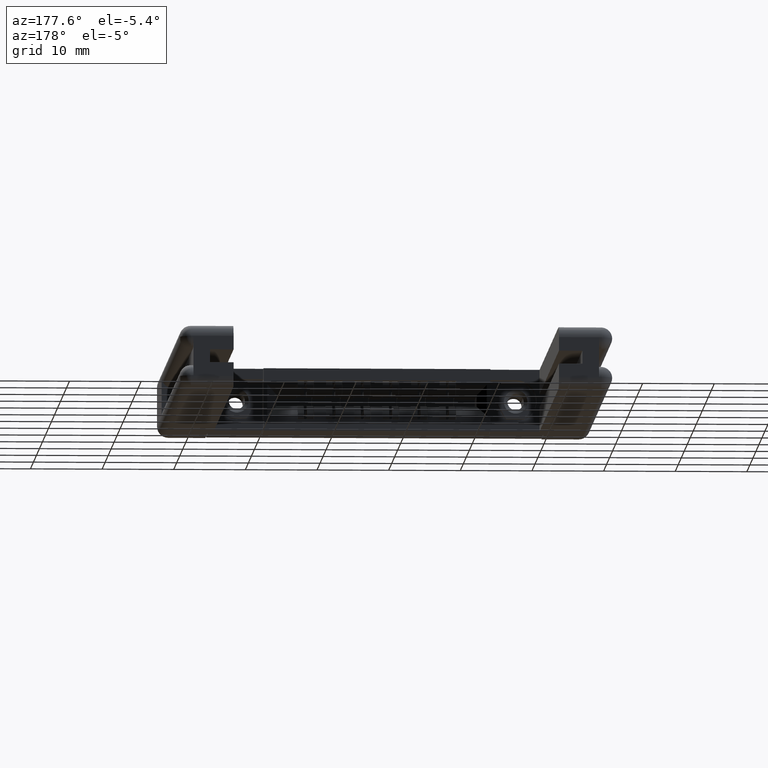
[diagram: clean part render]
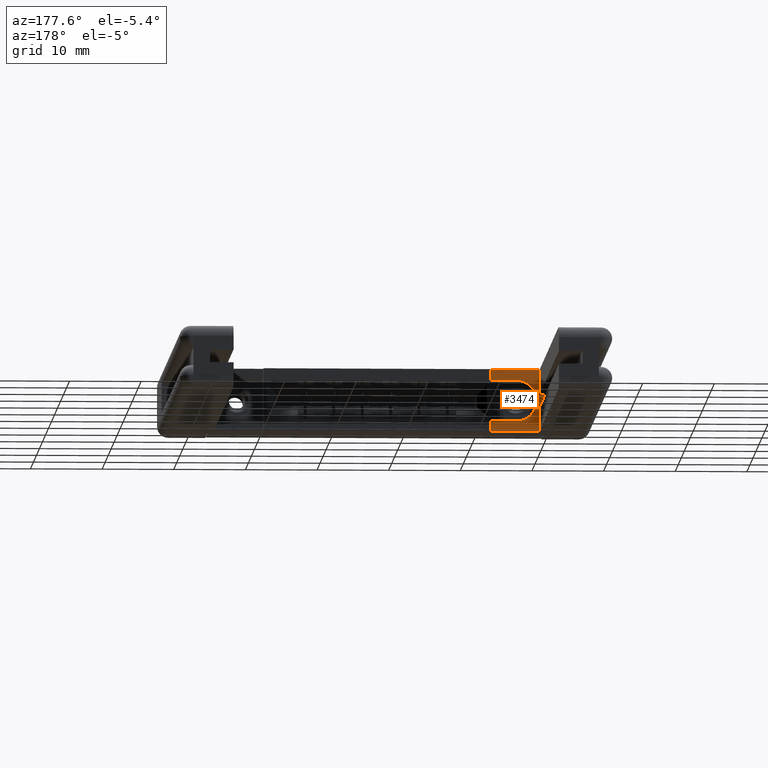
[diagram: same view with one face highlighted and labeled with its STEP entity id]
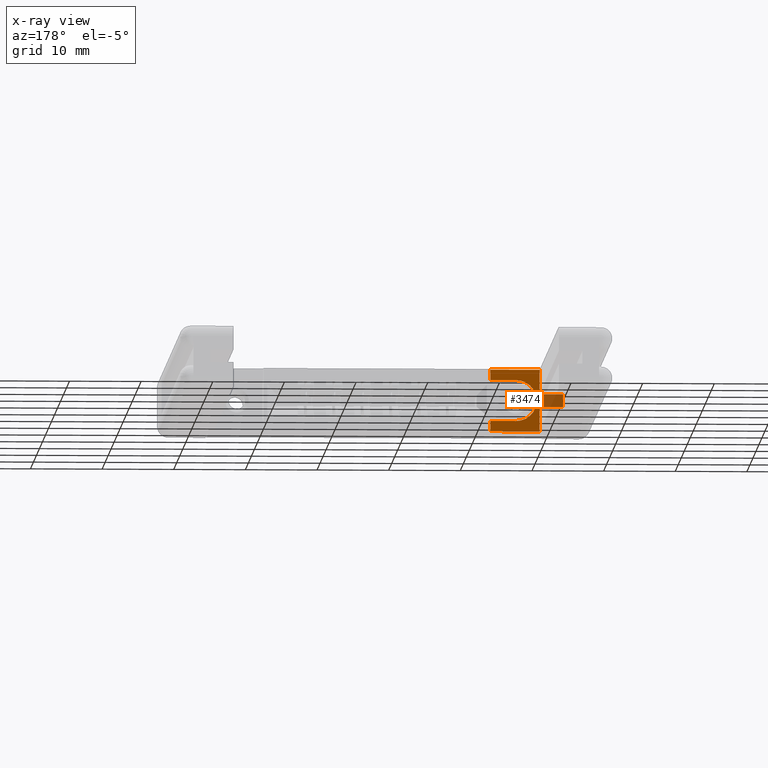
[diagram: x-ray of the same camera — body ghosted, the highlighted face saturated]
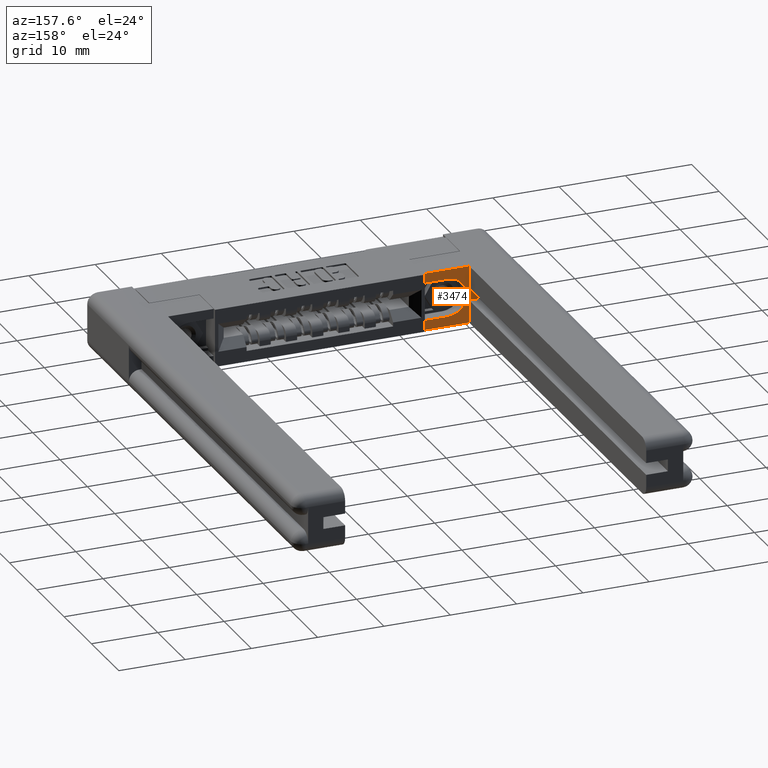
[diagram: same view with one face highlighted and labeled with its STEP entity id]
A machine part, auxiliary view. The second image highlights one B-rep face of the part: STEP entity #3474.
The next image is the same camera in x-ray: the body ghosted, the highlighted face saturated — about 16% of this face is hidden behind the body in this view.
A second angle (auxiliary view) of the same face is appended — the face is thin or edge-on in the first view.
In plain terms, the highlighted planar face has unit normal (0, 1, 0).
Its self-contained STEP definition (entity closure, byte-faithful):
#75 = CARTESIAN_POINT ( 'NONE',  ( 0.2950000000000032600, 0.4500000000000002300, -8.878505979408856000E-016 ) ) ;
#271 = EDGE_CURVE ( 'NONE', #777, #1813, #11849, .T. ) ;
#399 = DIRECTION ( 'NONE',  ( -1.000000000000000000, -7.120336040201832800E-016, -4.510281037539672600E-017 ) ) ;
#585 = CARTESIAN_POINT ( 'NONE',  ( 0.1660000000000000900, 0.4500000000000001200, -0.2055000000000013200 ) ) ;
#777 = VERTEX_POINT ( 'NONE', #4367 ) ;
#864 = LINE ( 'NONE', #10777, #11649 ) ;
#921 = DIRECTION ( 'NONE',  ( 4.510281037539688000E-017, -2.334284690065025200E-016, 1.000000000000000000 ) ) ;
#962 = CARTESIAN_POINT ( 'NONE',  ( 0.5650000000000069400, 0.4500000000000004000, -0.3400000000000018600 ) ) ;
#1063 = ORIENTED_EDGE ( 'NONE', *, *, #7415, .F. ) ;
#1114 = EDGE_CURVE ( 'NONE', #5631, #11055, #3360, .T. ) ;
#1247 = DIRECTION ( 'NONE',  ( 4.510281037539688600E-017, -2.334284690065025700E-016, 1.000000000000000000 ) ) ;
#1306 = EDGE_CURVE ( 'NONE', #777, #6497, #9309, .T. ) ;
#1471 = ORIENTED_EDGE ( 'NONE', *, *, #4206, .T. ) ;
#1509 = CARTESIAN_POINT ( 'NONE',  ( 0.2950000000000062600, 0.4500000000000002300, -0.3400000000000031900 ) ) ;
#1674 = EDGE_CURVE ( 'NONE', #11055, #11959, #864, .T. ) ;
#1744 = DIRECTION ( 'NONE',  ( 1.000000000000000000, 8.325563096230175100E-016, 4.510281037539665800E-017 ) ) ;
#1762 = EDGE_CURVE ( 'NONE', #6497, #12619, #10073, .T. ) ;
#1786 = ORIENTED_EDGE ( 'NONE', *, *, #271, .T. ) ;
#1813 = VERTEX_POINT ( 'NONE', #2915 ) ;
#2057 = VECTOR ( 'NONE', #10133, 39.37007874015748100 ) ;
#2249 = CARTESIAN_POINT ( 'NONE',  ( 0.2950000000000062600, 0.4500000000000002300, -0.3400000000000031900 ) ) ;
#2369 = EDGE_LOOP ( 'NONE', ( #6651, #5491, #1063, #12644, #4499, #12525, #6789, #1786, #1471, #3283, #12337, #7444 ) ) ;
#2495 = CARTESIAN_POINT ( 'NONE',  ( 0.2950000000000062600, 0.4500000000000002300, -0.3400000000000031900 ) ) ;
#2890 = DIRECTION ( 'NONE',  ( 0.0000000000000000000, 0.0000000000000000000, 1.000000000000000000 ) ) ;
#2915 = CARTESIAN_POINT ( 'NONE',  ( 0.2950000000000032600, 0.4500000000000002300, -0.1345000000000017000 ) ) ;
#2924 = DIRECTION ( 'NONE',  ( 7.120336040201873200E-016, 1.000000000000000000, 2.334284690065024700E-016 ) ) ;
#2959 = LINE ( 'NONE', #962, #7490 ) ;
#2963 = DIRECTION ( 'NONE',  ( 4.510281037539688600E-017, -2.334284690065025700E-016, 1.000000000000000000 ) ) ;
#3082 = VECTOR ( 'NONE', #1744, 39.37007874015748100 ) ;
#3095 = EDGE_CURVE ( 'NONE', #9585, #12619, #8087, .T. ) ;
#3157 = CARTESIAN_POINT ( 'NONE',  ( 0.5650000000000069400, 0.4500000000000004000, -0.3400000000000018600 ) ) ;
#3226 = DIRECTION ( 'NONE',  ( -4.510281037539688600E-017, 2.334284690065025700E-016, -1.000000000000000000 ) ) ;
#3241 = DIRECTION ( 'NONE',  ( 4.510281037539688600E-017, -2.334284690065025700E-016, 1.000000000000000000 ) ) ;
#3283 = ORIENTED_EDGE ( 'NONE', *, *, #1674, .F. ) ;
#3360 = LINE ( 'NONE', #9869, #12896 ) ;
#3474 = ADVANCED_FACE ( 'NONE', ( #6342 ), #5759, .T. ) ;
#4206 = EDGE_CURVE ( 'NONE', #1813, #11959, #11165, .T. ) ;
#4367 = CARTESIAN_POINT ( 'NONE',  ( 0.1659999999999998100, 0.4500000000000001200, -0.1345000000000013700 ) ) ;
#4413 = CARTESIAN_POINT ( 'NONE',  ( 0.4230000000000066500, 0.4500000000000004000, -0.2825000000000016900 ) ) ;
#4495 = DIRECTION ( 'NONE',  ( -1.000000000000000000, -7.120336040201832800E-016, -4.510281037539672600E-017 ) ) ;
#4499 = ORIENTED_EDGE ( 'NONE', *, *, #3095, .T. ) ;
#4922 = EDGE_CURVE ( 'NONE', #5631, #8978, #7055, .T. ) ;
#5011 = VERTEX_POINT ( 'NONE', #4413 ) ;
#5467 = CARTESIAN_POINT ( 'NONE',  ( -0.04781107766231787500, 0.4499999999999999600, -0.05750000000000048100 ) ) ;
#5491 = ORIENTED_EDGE ( 'NONE', *, *, #10020, .T. ) ;
#5631 = VERTEX_POINT ( 'NONE', #6421 ) ;
#5661 = CARTESIAN_POINT ( 'NONE',  ( 0.1659999999999998100, 0.4500000000000001200, -0.1345000000000013700 ) ) ;
#5759 = PLANE ( 'NONE',  #7215 ) ;
#5845 = VECTOR ( 'NONE', #1247, 39.37007874015748100 ) ;
#6159 = CARTESIAN_POINT ( 'NONE',  ( -0.04781107766231787500, 0.4499999999999999600, -0.2825000000000020800 ) ) ;
#6342 = FACE_OUTER_BOUND ( 'NONE', #2369, .T. ) ;
#6421 = CARTESIAN_POINT ( 'NONE',  ( 0.5650000000000067200, 0.4500000000000004000, -0.05750000000000048100 ) ) ;
#6497 = VERTEX_POINT ( 'NONE', #585 ) ;
#6520 = VECTOR ( 'NONE', #3241, 39.37007874015748100 ) ;
#6651 = ORIENTED_EDGE ( 'NONE', *, *, #6740, .F. ) ;
#6740 = EDGE_CURVE ( 'NONE', #5011, #8978, #8752, .T. ) ;
#6789 = ORIENTED_EDGE ( 'NONE', *, *, #1306, .F. ) ;
#6915 = VECTOR ( 'NONE', #399, 39.37007874015748100 ) ;
#7055 = LINE ( 'NONE', #5467, #6915 ) ;
#7178 = EDGE_CURVE ( 'NONE', #11220, #9585, #7777, .T. ) ;
#7215 = AXIS2_PLACEMENT_3D ( 'NONE', #11803, #2924, #921 ) ;
#7221 = CARTESIAN_POINT ( 'NONE',  ( 0.5650000000000067200, 0.4500000000000004000, -0.2825000000000016400 ) ) ;
#7415 = EDGE_CURVE ( 'NONE', #11220, #7595, #2959, .T. ) ;
#7444 = ORIENTED_EDGE ( 'NONE', *, *, #4922, .T. ) ;
#7473 = VECTOR ( 'NONE', #4495, 39.37007874015748100 ) ;
#7490 = VECTOR ( 'NONE', #2963, 39.37007874015748100 ) ;
#7494 = CARTESIAN_POINT ( 'NONE',  ( 0.4230000000000066500, 0.4500000000000004000, -0.05750000000000048100 ) ) ;
#7595 = VERTEX_POINT ( 'NONE', #7221 ) ;
#7777 = LINE ( 'NONE', #1509, #7473 ) ;
#8087 = LINE ( 'NONE', #9140, #6520 ) ;
#8727 = DIRECTION ( 'NONE',  ( -1.000000000000000000, -7.120336040201832800E-016, -4.510281037539672600E-017 ) ) ;
#8752 = CIRCLE ( 'NONE', #8867, 0.1125000000000005700 ) ;
#8867 = AXIS2_PLACEMENT_3D ( 'NONE', #8972, #9008, #2890 ) ;
#8972 = CARTESIAN_POINT ( 'NONE',  ( 0.4230000000000066500, 0.4500000000000004000, -0.1700000000000012900 ) ) ;
#8978 = VERTEX_POINT ( 'NONE', #7494 ) ;
#8988 = VECTOR ( 'NONE', #11876, 39.37007874015748100 ) ;
#9008 = DIRECTION ( 'NONE',  ( 7.120336040201873200E-016, 1.000000000000000000, -2.334284690065040000E-016 ) ) ;
#9140 = CARTESIAN_POINT ( 'NONE',  ( 0.2950000000000062600, 0.4500000000000002300, -0.3400000000000031900 ) ) ;
#9211 = CARTESIAN_POINT ( 'NONE',  ( 0.1659999999999998100, 0.4500000000000001200, -0.1345000000000013700 ) ) ;
#9309 = LINE ( 'NONE', #9211, #11662 ) ;
#9585 = VERTEX_POINT ( 'NONE', #2495 ) ;
#9869 = CARTESIAN_POINT ( 'NONE',  ( 0.5650000000000069400, 0.4500000000000004000, -0.3400000000000018600 ) ) ;
#9946 = CARTESIAN_POINT ( 'NONE',  ( 0.1660000000000000900, 0.4500000000000001200, -0.2055000000000013200 ) ) ;
#10006 = DIRECTION ( 'NONE',  ( 4.510281037539688600E-017, -2.334284690065025700E-016, 1.000000000000000000 ) ) ;
#10020 = EDGE_CURVE ( 'NONE', #5011, #7595, #11300, .T. ) ;
#10073 = LINE ( 'NONE', #9946, #8988 ) ;
#10133 = DIRECTION ( 'NONE',  ( 1.000000000000000000, 7.120336040201832800E-016, 4.510281037539672600E-017 ) ) ;
#10777 = CARTESIAN_POINT ( 'NONE',  ( 0.2950000000000032600, 0.4500000000000002300, -8.878505979408856000E-016 ) ) ;
#11055 = VERTEX_POINT ( 'NONE', #12689 ) ;
#11165 = LINE ( 'NONE', #2249, #5845 ) ;
#11203 = CARTESIAN_POINT ( 'NONE',  ( 0.2950000000000062600, 0.4500000000000001200, -0.2055000000000009300 ) ) ;
#11220 = VERTEX_POINT ( 'NONE', #3157 ) ;
#11300 = LINE ( 'NONE', #6159, #2057 ) ;
#11649 = VECTOR ( 'NONE', #8727, 39.37007874015748100 ) ;
#11662 = VECTOR ( 'NONE', #3226, 39.37007874015748100 ) ;
#11803 = CARTESIAN_POINT ( 'NONE',  ( 0.2950000000000062600, 0.4500000000000002300, -0.3400000000000031900 ) ) ;
#11849 = LINE ( 'NONE', #5661, #3082 ) ;
#11876 = DIRECTION ( 'NONE',  ( 1.000000000000000000, 8.325563096230175100E-016, 4.510281037539665800E-017 ) ) ;
#11959 = VERTEX_POINT ( 'NONE', #75 ) ;
#12337 = ORIENTED_EDGE ( 'NONE', *, *, #1114, .F. ) ;
#12525 = ORIENTED_EDGE ( 'NONE', *, *, #1762, .F. ) ;
#12619 = VERTEX_POINT ( 'NONE', #11203 ) ;
#12644 = ORIENTED_EDGE ( 'NONE', *, *, #7178, .T. ) ;
#12689 = CARTESIAN_POINT ( 'NONE',  ( 0.5650000000000067200, 0.4500000000000004000, 0.0000000000000000000 ) ) ;
#12896 = VECTOR ( 'NONE', #10006, 39.37007874015748100 ) ;